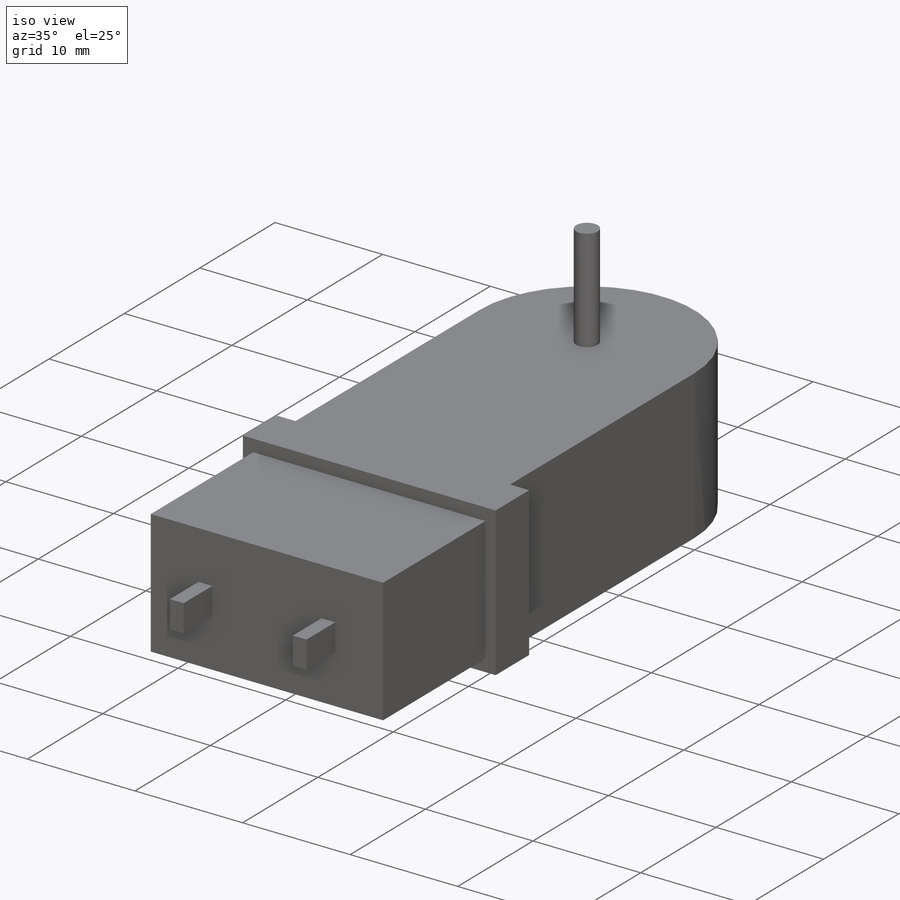
[diagram: iso view]
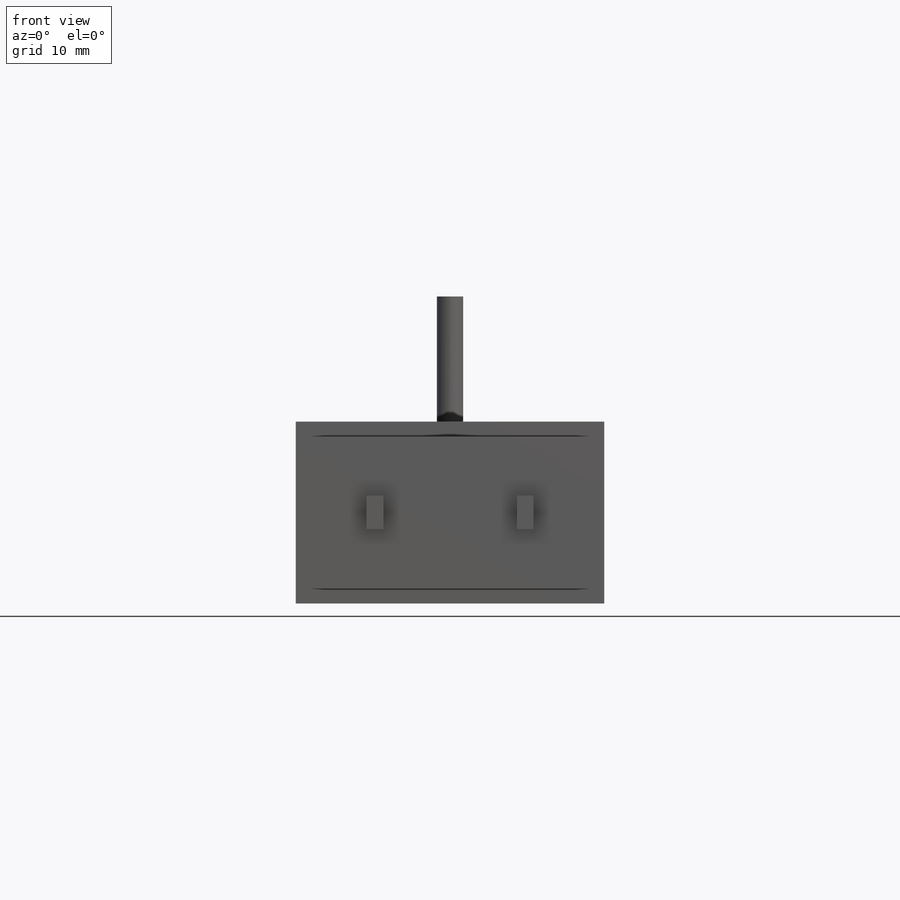
[diagram: front view]
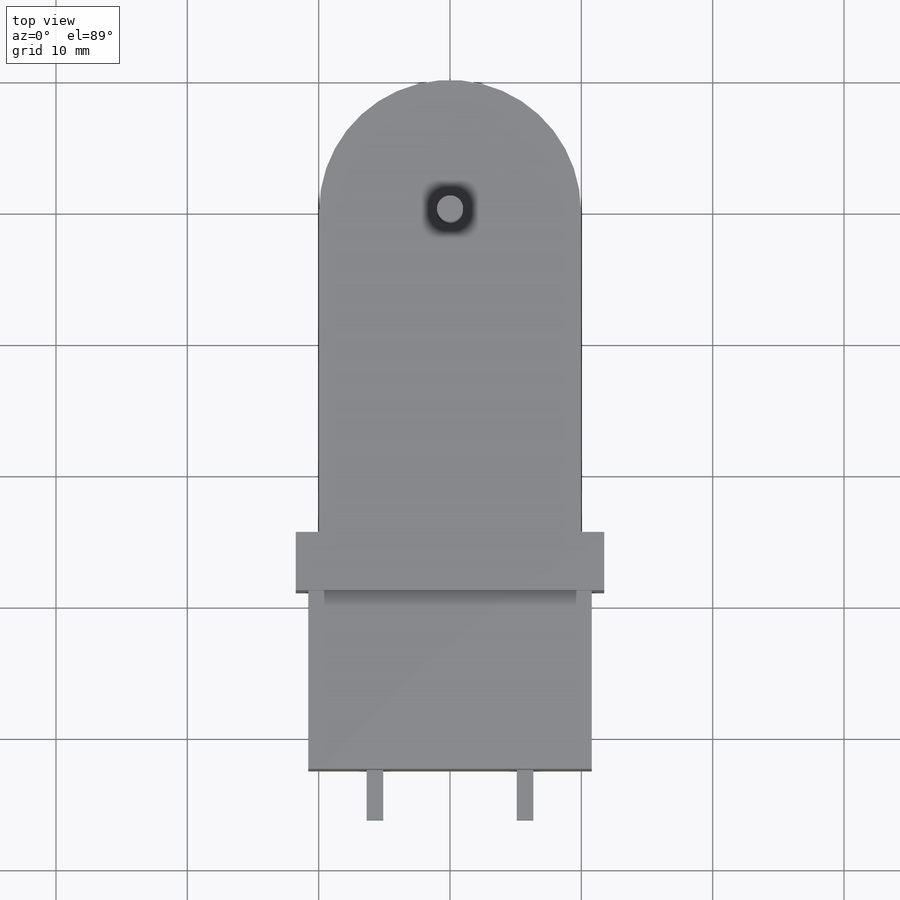
[diagram: top view]
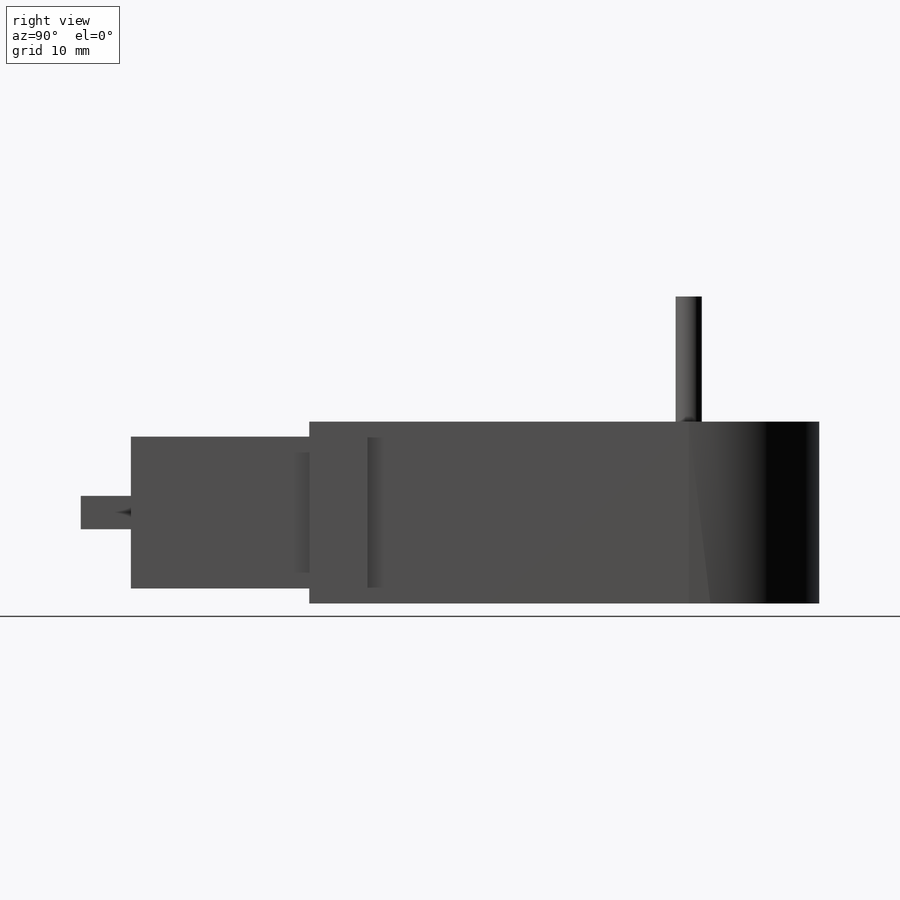
[diagram: right view]
SOLIDWORKS PART (.sldprt)
format: sldprt  version: not decoded by parser v0  size: 179,712 bytes
history: native  units: mm
features: sketch x4, extrude x3, material x1, cut_extrude x1 (+15 scaffold rows collapsed)
feature tree (24):
  scaffold x15  (default folders/planes/origin — collapsed)
  material  "Material <not specified>"
  sketch  "Sketch1"  dims[D1=52.451mm D2=19.939mm D3=23.495mm D4=21.59mm D5=4.445mm D6=13.589mm]
  extrude  "Extrude1"  Depth=13.843mm
  sketch  "Sketch2"  dims[D1=11.557mm]
  cut_extrude  "Cut-Extrude1"  [1 undecoded]
  sketch  "Sketch3"  dims[D1=2.0mm]
  extrude  "Extrude2"  Depth=9.525mm
  sketch  "Sketch4"  dims[D1=1.27mm D2=2.54mm D3=10.16mm]
  extrude  "Extrude3"  Depth=3.81mm
decode coverage: 7 of 8 modeling features carry decoded parameters
note: 1 parameter value undecoded
note: suppression state not decoded; provenance and decode notes live in map.json
